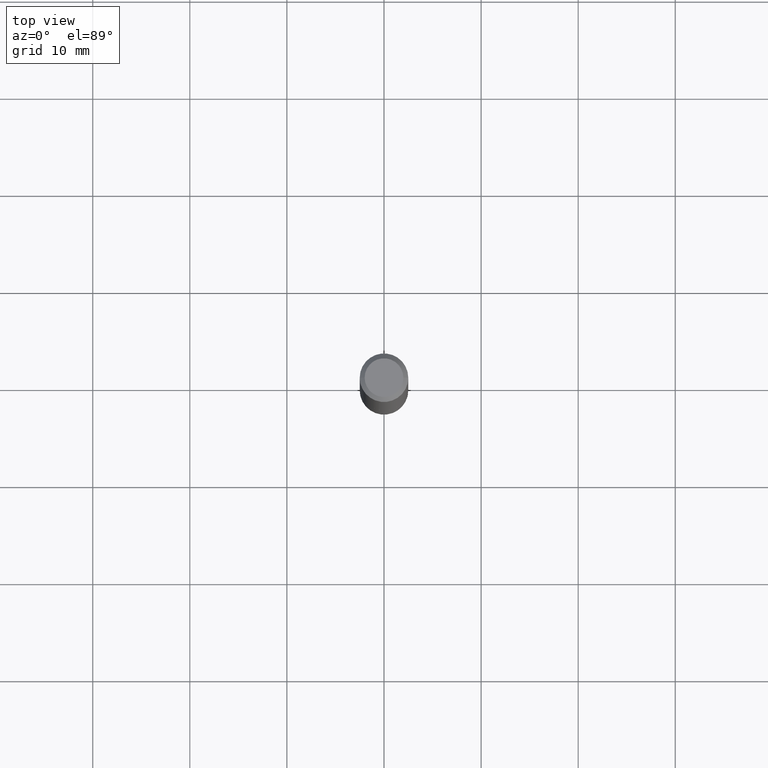
[diagram: clean part render]
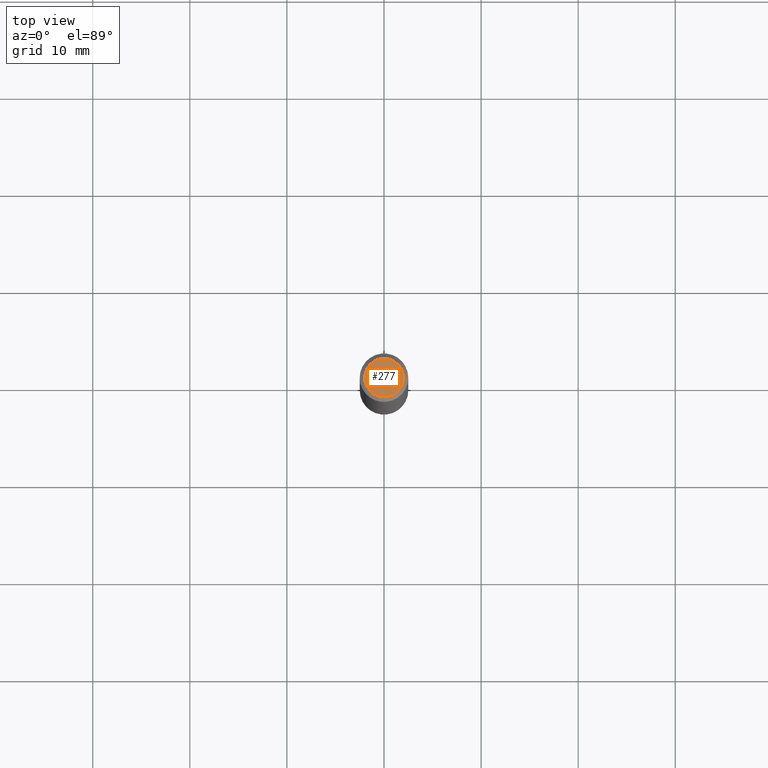
[diagram: same view with one face highlighted and labeled with its STEP entity id]
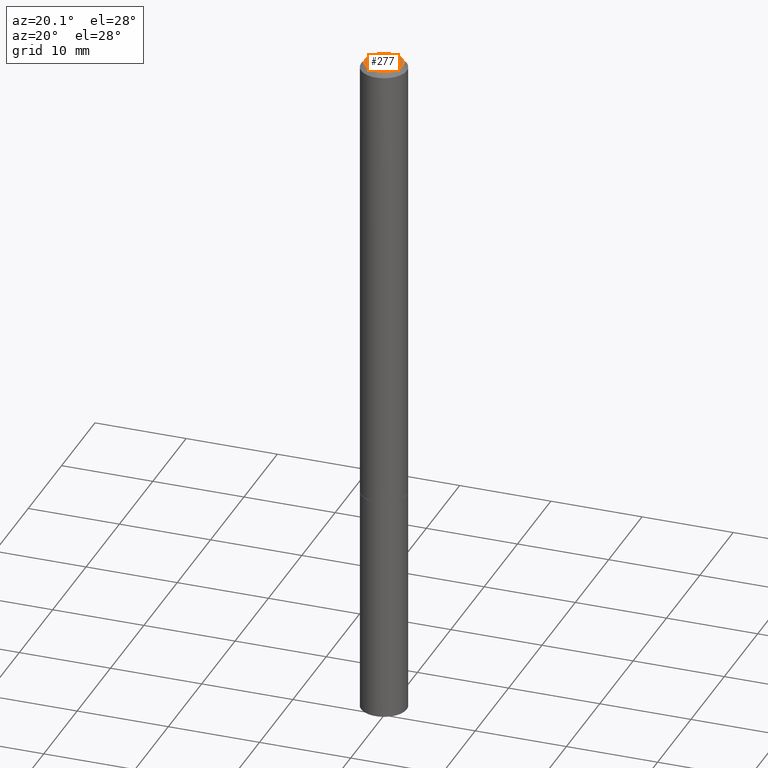
[diagram: same view with one face highlighted and labeled with its STEP entity id]
A machine part, top view. The second image highlights one B-rep face of the part: STEP entity #277.
A second angle (auxiliary view) of the same face is appended — the face is thin or edge-on in the first view.
In plain terms, the highlighted planar face has unit normal (0, -0, -1).
Its self-contained STEP definition (entity closure, byte-faithful):
#17 = VERTEX_POINT ( 'NONE', #242 ) ;
#25 = PLANE ( 'NONE',  #138 ) ;
#27 = DIRECTION ( 'NONE',  ( -1.000000000000000000, 6.982962677686265922E-15, -4.876176775795935793E-29 ) ) ;
#28 = CARTESIAN_POINT ( 'NONE',  ( -0.07844999999999978380, 5.827282354529171197E-16, -3.953055038153088662E-30 ) ) ;
#33 = CIRCLE ( 'NONE', #220, 0.07844999999999978380 ) ;
#49 = VERTEX_POINT ( 'NONE', #28 ) ;
#55 = DIRECTION ( 'NONE',  ( -2.445468806185136597E-29, 3.491481338843145583E-15, 1.000000000000000000 ) ) ;
#64 = CARTESIAN_POINT ( 'NONE',  ( 0.000000000000000000, 0.000000000000000000, 0.000000000000000000 ) ) ;
#96 = ORIENTED_EDGE ( 'NONE', *, *, #131, .T. ) ;
#118 = AXIS2_PLACEMENT_3D ( 'NONE', #310, #55, #164 ) ;
#131 = EDGE_CURVE ( 'NONE', #17, #49, #33, .T. ) ;
#138 = AXIS2_PLACEMENT_3D ( 'NONE', #366, #365, #27 ) ;
#162 = FACE_OUTER_BOUND ( 'NONE', #345, .T. ) ;
#164 = DIRECTION ( 'NONE',  ( 1.000000000000000000, -6.982962677686265922E-15, 4.876176775795935793E-29 ) ) ;
#172 = DIRECTION ( 'NONE',  ( -2.445468806185136597E-29, 3.491481338843145583E-15, 1.000000000000000000 ) ) ;
#220 = AXIS2_PLACEMENT_3D ( 'NONE', #64, #172, #318 ) ;
#242 = CARTESIAN_POINT ( 'NONE',  ( 0.07844999999999978380, -6.417258612913219469E-16, 4.159044147803929809E-30 ) ) ;
#252 = CIRCLE ( 'NONE', #118, 0.07844999999999978380 ) ;
#254 = ORIENTED_EDGE ( 'NONE', *, *, #311, .T. ) ;
#277 = ADVANCED_FACE ( 'NONE', ( #162 ), #25, .F. ) ;
#310 = CARTESIAN_POINT ( 'NONE',  ( 0.000000000000000000, 0.000000000000000000, 0.000000000000000000 ) ) ;
#311 = EDGE_CURVE ( 'NONE', #49, #17, #252, .T. ) ;
#318 = DIRECTION ( 'NONE',  ( 1.000000000000000000, -6.982962677686265922E-15, 4.876176775795935793E-29 ) ) ;
#345 = EDGE_LOOP ( 'NONE', ( #254, #96 ) ) ;
#365 = DIRECTION ( 'NONE',  ( 2.438088387897960049E-29, -3.491481338843145188E-15, -1.000000000000000000 ) ) ;
#366 = CARTESIAN_POINT ( 'NONE',  ( 5.478134220644860623E-16, 0.07844999999999978380, -2.739067110322439679E-16 ) ) ;